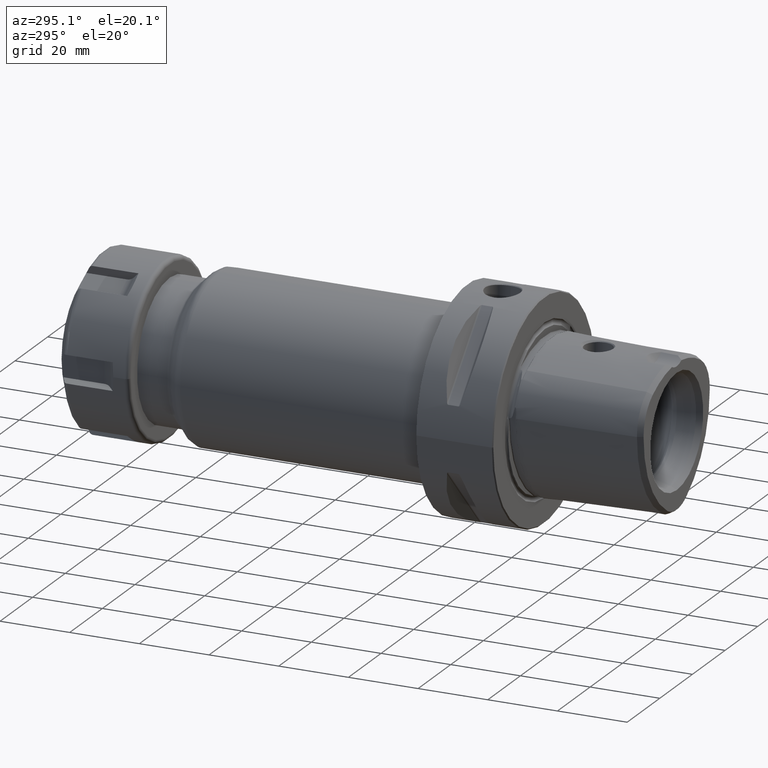
[diagram: clean part render]
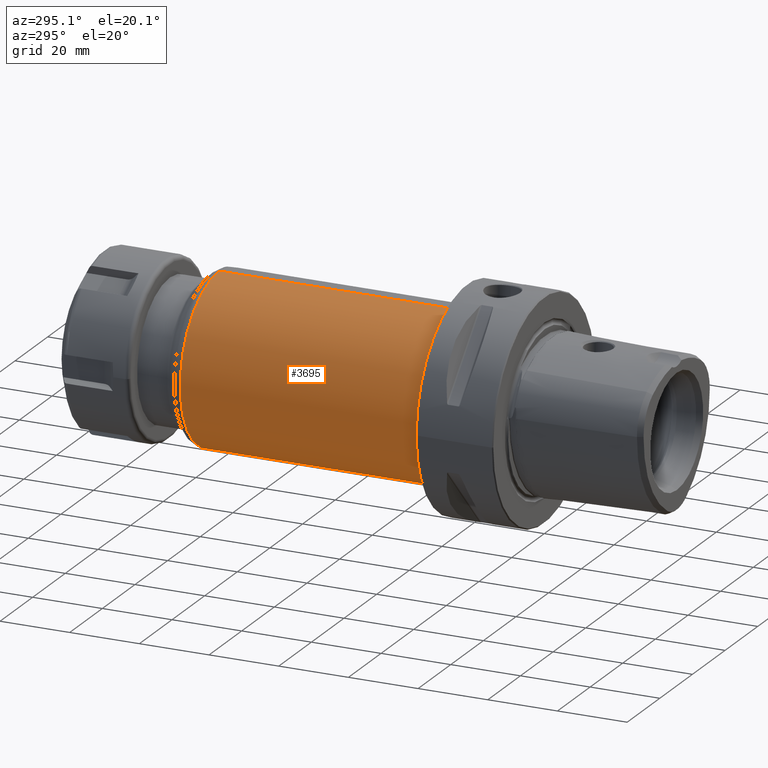
[diagram: same view with one face highlighted and labeled with its STEP entity id]
A machine part, auxiliary view. The second image highlights one B-rep face of the part: STEP entity #3695.
In plain terms, the highlighted cylindrical surface (partial cylindrical patch) has radius 24 mm, axis along (0, 1, 0).
Its self-contained STEP definition (entity closure, byte-faithful):
#1629=CARTESIAN_POINT('',(0.E0,9.325735931288E1,0.E0));
#1630=DIRECTION('',(0.E0,-1.E0,0.E0));
#1631=DIRECTION('',(0.E0,0.E0,1.E0));
#1632=AXIS2_PLACEMENT_3D('',#1629,#1630,#1631);
#1634=DIRECTION('',(5.004348293783E-12,-1.E0,0.E0));
#1635=VECTOR('',#1634,6.875735931288E1);
#1636=CARTESIAN_POINT('',(-3.391820589099E-10,9.325735931288E1,2.4E1));
#1637=LINE('',#1636,#1635);
#1638=CARTESIAN_POINT('',(0.E0,2.45E1,0.E0));
#1639=DIRECTION('',(0.E0,1.E0,0.E0));
#1640=DIRECTION('',(0.E0,0.E0,-1.E0));
#1641=AXIS2_PLACEMENT_3D('',#1638,#1639,#1640);
#1643=DIRECTION('',(-5.004385942471E-12,-1.E0,0.E0));
#1644=VECTOR('',#1643,6.875735931288E1);
#1645=CARTESIAN_POINT('',(3.391813175998E-10,9.325735931288E1,-2.4E1));
#1646=LINE('',#1645,#1644);
#2146=CARTESIAN_POINT('',(0.E0,2.45E1,-2.4E1));
#2147=CARTESIAN_POINT('',(0.E0,2.45E1,2.4E1));
#2148=VERTEX_POINT('',#2146);
#2149=VERTEX_POINT('',#2147);
#2158=CARTESIAN_POINT('',(0.E0,9.325735931288E1,2.4E1));
#2159=CARTESIAN_POINT('',(0.E0,9.325735931288E1,-2.4E1));
#2160=VERTEX_POINT('',#2158);
#2161=VERTEX_POINT('',#2159);
#3684=CARTESIAN_POINT('',(0.E0,1.725E1,0.E0));
#3685=DIRECTION('',(0.E0,1.E0,0.E0));
#3686=DIRECTION('',(0.E0,0.E0,-1.E0));
#3687=AXIS2_PLACEMENT_3D('',#3684,#3685,#3686);
#3688=CYLINDRICAL_SURFACE('',#3687,2.4E1);
#3689=ORIENTED_EDGE('',*,*,#3675,.F.);
#3690=ORIENTED_EDGE('',*,*,#3650,.T.);
#3691=ORIENTED_EDGE('',*,*,#3620,.F.);
#3692=ORIENTED_EDGE('',*,*,#3647,.F.);
#3693=EDGE_LOOP('',(#3689,#3690,#3691,#3692));
#3694=FACE_OUTER_BOUND('',#3693,.F.);
#3695=ADVANCED_FACE('',(#3694),#3688,.T.);
#1633=CIRCLE('',#1632,2.4E1);
#1642=CIRCLE('',#1641,2.4E1);
#3620=EDGE_CURVE('',#2148,#2149,#1642,.T.);
#3647=EDGE_CURVE('',#2161,#2148,#1646,.T.);
#3650=EDGE_CURVE('',#2160,#2149,#1637,.T.);
#3675=EDGE_CURVE('',#2160,#2161,#1633,.T.);